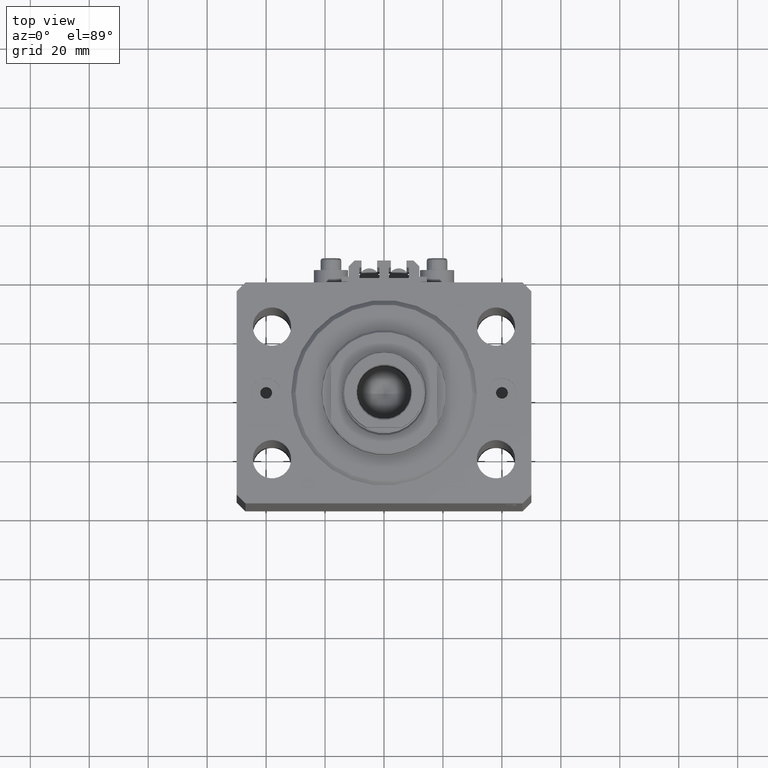
[diagram: clean part render]
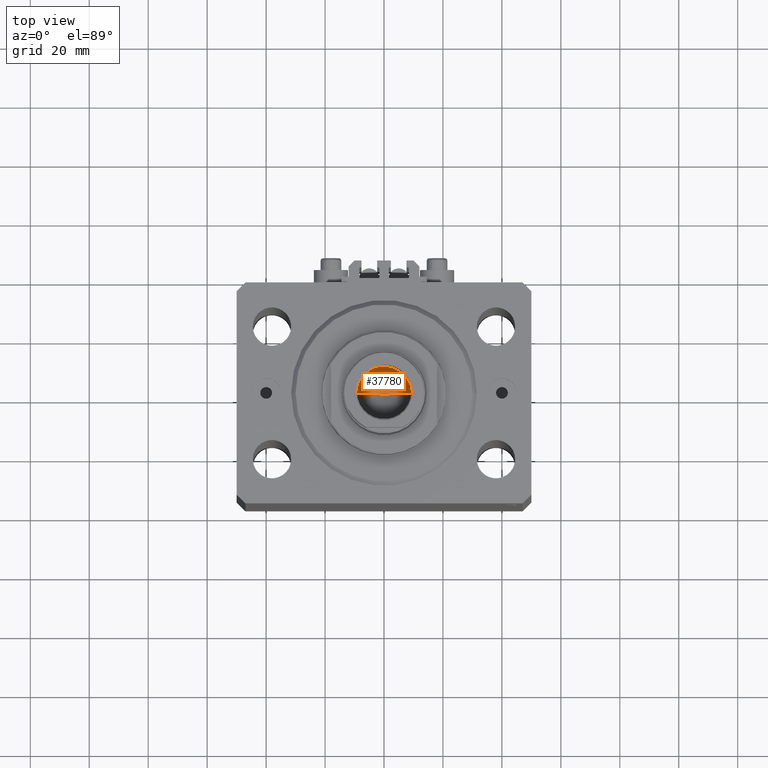
[diagram: same view with one face highlighted and labeled with its STEP entity id]
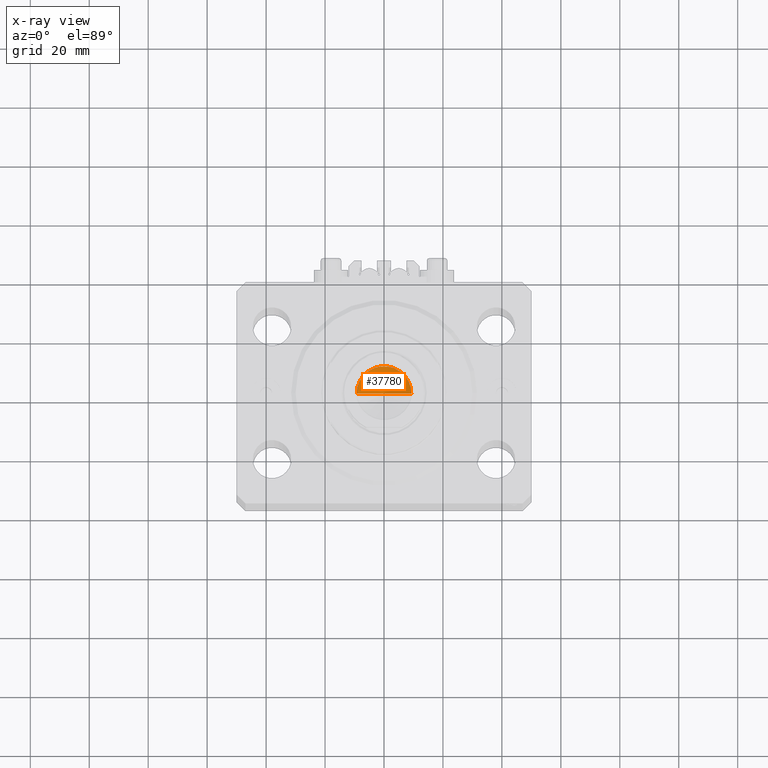
[diagram: x-ray of the same camera — body ghosted, the highlighted face saturated]
A machine part, top view. The second image highlights one B-rep face of the part: STEP entity #37780.
The next image is the same camera in x-ray: the body ghosted, the highlighted face saturated — about 0% of this face is hidden behind the body in this view.
In plain terms, the highlighted conical surface has half-angle 59 deg.
Its self-contained STEP definition (entity closure, byte-faithful):
#411 = ORIENTED_EDGE ( 'NONE', *, *, #21717, .T. ) ;
#426 = CARTESIAN_POINT ( 'NONE',  ( -9.249999999999994671, 1.132798289211300909E-15, 128.1000000000000227 ) ) ;
#1160 = DIRECTION ( 'NONE',  ( -0.8571673007021117785, 1.049727191138617956E-16, 0.5150380749100550437 ) ) ;
#4806 = LINE ( 'NONE', #426, #36251 ) ;
#5560 = CARTESIAN_POINT ( 'NONE',  ( -9.249999999999994671, 1.132798289211300909E-15, 128.1000000000000227 ) ) ;
#5573 = CIRCLE ( 'NONE', #45938, 9.249999999999994671 ) ;
#9678 = EDGE_CURVE ( 'NONE', #32308, #13112, #4806, .T. ) ;
#11636 = AXIS2_PLACEMENT_3D ( 'NONE', #24243, #20138, #31302 ) ;
#12458 = ORIENTED_EDGE ( 'NONE', *, *, #9678, .F. ) ;
#12799 = CARTESIAN_POINT ( 'NONE',  ( 0.000000000000000000, 0.000000000000000000, 128.1000000000000227 ) ) ;
#13112 = VERTEX_POINT ( 'NONE', #5560 ) ;
#13924 = EDGE_CURVE ( 'NONE', #32308, #16511, #18909, .T. ) ;
#16511 = VERTEX_POINT ( 'NONE', #22286 ) ;
#18909 = LINE ( 'NONE', #41766, #43317 ) ;
#19878 = DIRECTION ( 'NONE',  ( 0.8571673007021117785, 0.000000000000000000, 0.5150380749100550437 ) ) ;
#20138 = DIRECTION ( 'NONE',  ( -0.000000000000000000, -0.000000000000000000, 1.000000000000000000 ) ) ;
#21717 = EDGE_CURVE ( 'NONE', #16511, #13112, #5573, .T. ) ;
#22286 = CARTESIAN_POINT ( 'NONE',  ( 9.249999999999994671, 0.000000000000000000, 128.1000000000000227 ) ) ;
#23299 = FACE_OUTER_BOUND ( 'NONE', #33117, .T. ) ;
#24243 = CARTESIAN_POINT ( 'NONE',  ( 0.000000000000000000, 0.000000000000000000, 128.1000000000000227 ) ) ;
#26350 = CONICAL_SURFACE ( 'NONE', #11636, 9.249999999999994671, 1.029744258676653423 ) ;
#28792 = DIRECTION ( 'NONE',  ( -0.000000000000000000, -0.000000000000000000, 1.000000000000000000 ) ) ;
#31302 = DIRECTION ( 'NONE',  ( 1.000000000000000000, 0.000000000000000000, 0.000000000000000000 ) ) ;
#32308 = VERTEX_POINT ( 'NONE', #47117 ) ;
#33117 = EDGE_LOOP ( 'NONE', ( #12458, #47727, #411 ) ) ;
#36251 = VECTOR ( 'NONE', #1160, 1000.000000000000000 ) ;
#37780 = ADVANCED_FACE ( 'NONE', ( #23299 ), #26350, .F. ) ;
#41766 = CARTESIAN_POINT ( 'NONE',  ( 9.249999999999994671, 0.000000000000000000, 128.1000000000000227 ) ) ;
#43317 = VECTOR ( 'NONE', #19878, 1000.000000000000000 ) ;
#45938 = AXIS2_PLACEMENT_3D ( 'NONE', #12799, #28792, #46806 ) ;
#46806 = DIRECTION ( 'NONE',  ( 1.000000000000000000, 0.000000000000000000, 0.000000000000000000 ) ) ;
#47117 = CARTESIAN_POINT ( 'NONE',  ( -1.046994375366439223E-14, 0.000000000000000000, 122.5420392739950870 ) ) ;
#47727 = ORIENTED_EDGE ( 'NONE', *, *, #13924, .T. ) ;